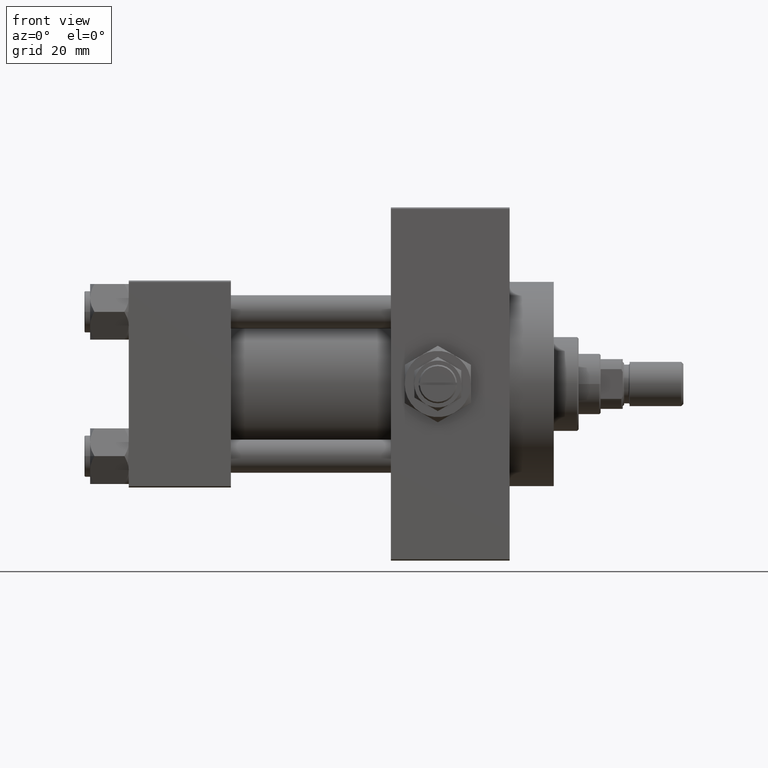
[diagram: clean part render]
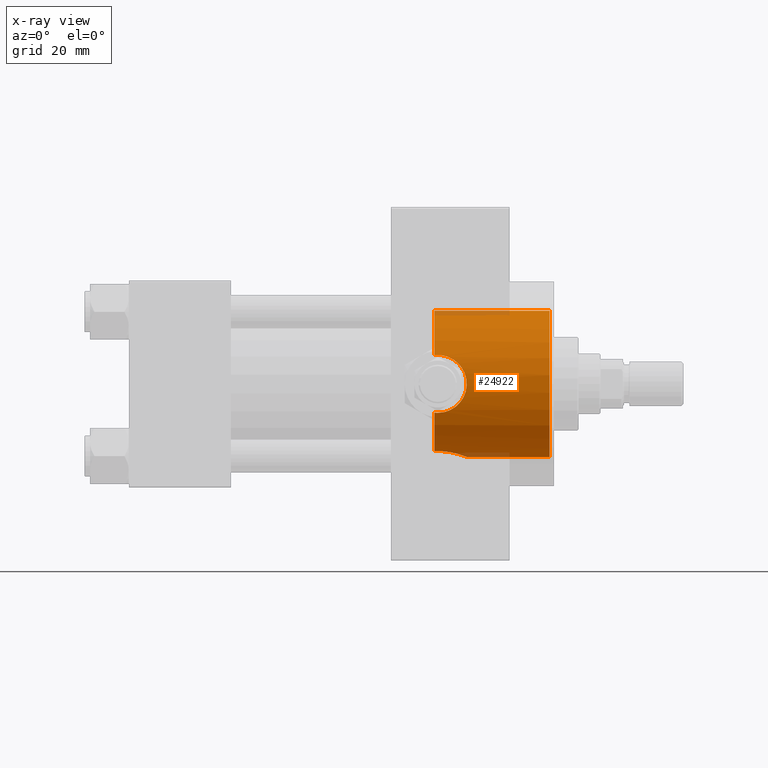
[diagram: x-ray — body ghosted, one internal face saturated and labeled with its STEP entity id]
A machine part, front view, then the same camera in x-ray: the body is ghosted and one INTERNAL B-rep face — a face not visible from any outside direction — is saturated and labeled: STEP entity #24922.
In plain terms, the highlighted cylindrical surface (partial cylindrical patch) has radius 26.5 mm, axis along (1, 0, 0).
Its self-contained STEP definition (entity closure, byte-faithful):
#432 = CARTESIAN_POINT ( 'NONE',  ( 116.6580558779861150, -24.77960996754317335, -9.394203453174529983 ) ) ;
#1138 = ORIENTED_EDGE ( 'NONE', *, *, #12443, .F. ) ;
#1708 = CARTESIAN_POINT ( 'NONE',  ( 121.8335546017134305, -3.642695553053290958, -26.25084325021122567 ) ) ;
#1870 = CYLINDRICAL_SURFACE ( 'NONE', #27456, 26.50000000000000355 ) ;
#1956 = CARTESIAN_POINT ( 'NONE',  ( 119.9981355541606973, -6.811571481472474154, -25.61680511670815363 ) ) ;
#2081 = AXIS2_PLACEMENT_3D ( 'NONE', #20196, #23481, #38541 ) ;
#2121 = DIRECTION ( 'NONE',  ( 0.000000000000000000, 0.000000000000000000, -1.000000000000000000 ) ) ;
#2364 = FACE_OUTER_BOUND ( 'NONE', #11377, .T. ) ;
#3057 = DIRECTION ( 'NONE',  ( 0.000000000000000000, 0.000000000000000000, -1.000000000000000000 ) ) ;
#3451 = CARTESIAN_POINT ( 'NONE',  ( 116.3489237122697091, -24.72318467201152714, -9.541179571695423078 ) ) ;
#3556 = CARTESIAN_POINT ( 'NONE',  ( 152.5000000000000853, 0.000000000000000000, 0.000000000000000000 ) ) ;
#3705 = CARTESIAN_POINT ( 'NONE',  ( 121.3916535229813576, -26.08830885934473542, 4.663043711798784408 ) ) ;
#4188 = CARTESIAN_POINT ( 'NONE',  ( 121.5385175848662982, -26.14168889184968947, 4.354785931857526826 ) ) ;
#5986 = EDGE_CURVE ( 'NONE', #36755, #46455, #40301, .T. ) ;
#6121 = DIRECTION ( 'NONE',  ( 1.000000000000000000, -0.000000000000000000, -0.000000000000000000 ) ) ;
#6219 = CARTESIAN_POINT ( 'NONE',  ( 112.0000000000000000, -24.33967132070604222, -10.47999999999999865 ) ) ;
#6221 = CARTESIAN_POINT ( 'NONE',  ( 118.3983008714430696, -8.308216825530728045, -25.16494175890557017 ) ) ;
#6460 = CARTESIAN_POINT ( 'NONE',  ( 115.5115735695664796, -9.881194972351249106, -24.58915736193083745 ) ) ;
#6583 = CARTESIAN_POINT ( 'NONE',  ( 152.5000000000000853, 0.000000000000000000, -26.50000000000000355 ) ) ;
#6607 = ORIENTED_EDGE ( 'NONE', *, *, #17619, .F. ) ;
#6617 = LINE ( 'NONE', #48533, #34924 ) ;
#6973 = CIRCLE ( 'NONE', #21333, 26.50000000000000355 ) ;
#6978 = CARTESIAN_POINT ( 'NONE',  ( 114.4459359432478038, -10.21777125531387753, -24.45211332338677579 ) ) ;
#7219 = CARTESIAN_POINT ( 'NONE',  ( 118.1110651716822275, -25.09360970262138224, 8.520611273842996880 ) ) ;
#7468 = CARTESIAN_POINT ( 'NONE',  ( 115.4024368383431352, -24.56844862672225815, -9.935854460437969493 ) ) ;
#7721 = CARTESIAN_POINT ( 'NONE',  ( 122.1219222710722505, -26.36027543327034905, 2.738055544399104146 ) ) ;
#7961 = CARTESIAN_POINT ( 'NONE',  ( 117.5577538920436780, -24.96463143003449403, -8.891425016462852327 ) ) ;
#8500 = VERTEX_POINT ( 'NONE', #27223 ) ;
#9310 = CIRCLE ( 'NONE', #2081, 26.50000000000000355 ) ;
#9484 = CARTESIAN_POINT ( 'NONE',  ( 120.8553297434205689, -5.616857363200493225, -25.89992295911057951 ) ) ;
#9887 = CARTESIAN_POINT ( 'NONE',  ( 110.7400000000000375, 0.000000000000000000, 0.000000000000000000 ) ) ;
#10723 = CARTESIAN_POINT ( 'NONE',  ( 111.4868983507928561, -10.49443499905853550, -24.33364968799255124 ) ) ;
#10901 = CARTESIAN_POINT ( 'NONE',  ( 112.0000000000000000, -24.33967132070604222, -10.47999999999999865 ) ) ;
#11222 = CARTESIAN_POINT ( 'NONE',  ( 116.6659000583122605, -24.77500862834706652, 9.408993987884901600 ) ) ;
#11377 = EDGE_LOOP ( 'NONE', ( #6607, #34921, #23945, #1138, #26173, #12323, #18878, #40314, #44256 ) ) ;
#11464 = CARTESIAN_POINT ( 'NONE',  ( 122.4800680225664280, -26.50002690099941205, -0.3451042088078361547 ) ) ;
#11720 = CARTESIAN_POINT ( 'NONE',  ( 114.3947302122627718, -24.45488967133337965, 10.20851256290626985 ) ) ;
#11906 = CARTESIAN_POINT ( 'NONE',  ( 112.0000000000000000, -24.33967132070604222, 10.48000000000000220 ) ) ;
#11957 = CARTESIAN_POINT ( 'NONE',  ( 112.6982936874238703, -24.33967132070603867, 10.47999999999999865 ) ) ;
#12039 = CARTESIAN_POINT ( 'NONE',  ( 110.7400000000000375, -10.40398000767013365, -24.37226292324945831 ) ) ;
#12323 = ORIENTED_EDGE ( 'NONE', *, *, #17220, .F. ) ;
#12443 = EDGE_CURVE ( 'NONE', #46427, #46455, #6617, .T. ) ;
#12511 = CARTESIAN_POINT ( 'NONE',  ( 121.2276638786152176, -4.981583166679953045, -26.02957788900646463 ) ) ;
#12991 = CARTESIAN_POINT ( 'NONE',  ( 122.4800000000001603, 1.044554909417470286E-14, -26.50000000000006750 ) ) ;
#13880 = LINE ( 'NONE', #29440, #29484 ) ;
#14477 = CARTESIAN_POINT ( 'NONE',  ( 117.4947120380321479, -8.931495953537135435, -24.95025484238639635 ) ) ;
#14939 = CARTESIAN_POINT ( 'NONE',  ( 111.5796744023297293, -24.33967132070604222, 10.48000000000000220 ) ) ;
#15236 = CARTESIAN_POINT ( 'NONE',  ( 114.7461877943153752, -24.48462605612510856, -10.13781324604279099 ) ) ;
#15416 = VERTEX_POINT ( 'NONE', #43598 ) ;
#15473 = CARTESIAN_POINT ( 'NONE',  ( 121.0679913760332198, -25.97354752128884314, 5.264851845784580320 ) ) ;
#15724 = CARTESIAN_POINT ( 'NONE',  ( 118.9276451403627135, -25.30216499957183984, -7.893159106980520257 ) ) ;
#15913 = CARTESIAN_POINT ( 'NONE',  ( 110.7400000000000375, -24.37226292324945476, 10.40398000767014786 ) ) ;
#16366 = CARTESIAN_POINT ( 'NONE',  ( 152.5000000000000853, 3.245314017740486554E-15, 26.50000000000000355 ) ) ;
#16631 = CARTESIAN_POINT ( 'NONE',  ( 110.7400000000000375, 0.000000000000000000, 0.000000000000000000 ) ) ;
#17003 = CARTESIAN_POINT ( 'NONE',  ( 121.6993435614955530, -3.985990130492286454, -26.20070574291653287 ) ) ;
#17220 = EDGE_CURVE ( 'NONE', #8500, #42226, #9310, .T. ) ;
#17253 = CARTESIAN_POINT ( 'NONE',  ( 119.5076201536012235, -7.348534936426531772, -25.46581292754184389 ) ) ;
#17498 = CARTESIAN_POINT ( 'NONE',  ( 112.2451057705678039, -10.50334255171939368, -24.32972513250579993 ) ) ;
#17619 = EDGE_CURVE ( 'NONE', #15416, #49035, #6973, .T. ) ;
#18746 = CARTESIAN_POINT ( 'NONE',  ( 122.3421836049517140, -26.44572692659851754, -1.728475508984260278 ) ) ;
#18878 = ORIENTED_EDGE ( 'NONE', *, *, #43985, .T. ) ;
#18998 = CARTESIAN_POINT ( 'NONE',  ( 115.3904700717597649, -24.57248644795726022, 9.922439993611771314 ) ) ;
#19101 = CARTESIAN_POINT ( 'NONE',  ( 112.0000000000000000, -24.33967132070604222, -10.47999999999999865 ) ) ;
#19480 = CARTESIAN_POINT ( 'NONE',  ( 115.7173844672076370, -24.61993612039164248, 9.804529592362731805 ) ) ;
#19735 = EDGE_CURVE ( 'NONE', #44105, #49035, #47396, .T. ) ;
#20036 = CARTESIAN_POINT ( 'NONE',  ( 122.1654842721633969, -2.575241489874368295, -26.37710048711162614 ) ) ;
#20196 = CARTESIAN_POINT ( 'NONE',  ( 110.7400000000000375, 0.000000000000000000, 0.000000000000000000 ) ) ;
#21333 = AXIS2_PLACEMENT_3D ( 'NONE', #16631, #35700, #47988 ) ;
#21505 = CARTESIAN_POINT ( 'NONE',  ( 112.6904960883777846, -24.33967132070604222, -10.48000000000000043 ) ) ;
#21506 = CARTESIAN_POINT ( 'NONE',  ( 113.7216423275559407, -10.36418010715235383, -24.38933169417625990 ) ) ;
#22154 = EDGE_CURVE ( 'NONE', #46427, #42226, #39630, .T. ) ;
#22764 = CARTESIAN_POINT ( 'NONE',  ( 122.2075249541714896, -26.39335609204158573, 2.399236127628239235 ) ) ;
#22867 = CARTESIAN_POINT ( 'NONE',  ( 111.1611364518797984, -24.35049096341792918, -10.45498279016081611 ) ) ;
#23013 = CARTESIAN_POINT ( 'NONE',  ( 112.0000000000000000, -24.33967132070604222, 10.48000000000000220 ) ) ;
#23255 = CARTESIAN_POINT ( 'NONE',  ( 121.9389570606566053, -26.28956209411557765, -3.395175965175880606 ) ) ;
#23481 = DIRECTION ( 'NONE',  ( 1.000000000000000000, 0.000000000000000000, 0.000000000000000000 ) ) ;
#23945 = ORIENTED_EDGE ( 'NONE', *, *, #5986, .T. ) ;
#24705 = DIRECTION ( 'NONE',  ( 1.000000000000000000, -0.000000000000000000, -0.000000000000000000 ) ) ;
#24787 = CARTESIAN_POINT ( 'NONE',  ( 120.6508763872861323, -5.926808359427498729, -25.83050513016100069 ) ) ;
#24922 = ADVANCED_FACE ( 'NONE', ( #2364 ), #1870, .F. ) ;
#25535 = CARTESIAN_POINT ( 'NONE',  ( 115.8600678267363406, -9.750145953289912626, -24.64162310621549423 ) ) ;
#25633 = DIRECTION ( 'NONE',  ( 1.000000000000000000, 0.000000000000000000, 0.000000000000000000 ) ) ;
#26173 = ORIENTED_EDGE ( 'NONE', *, *, #22154, .T. ) ;
#26296 = CARTESIAN_POINT ( 'NONE',  ( 119.1663633815065140, -25.37171319999174912, 7.654298772871992895 ) ) ;
#26783 = CARTESIAN_POINT ( 'NONE',  ( 122.4798633477534509, -26.49994595790488106, 0.6963870350870486892 ) ) ;
#27223 = CARTESIAN_POINT ( 'NONE',  ( 110.7400000000000375, -24.37226292324945831, -10.40398000767014430 ) ) ;
#27266 = CARTESIAN_POINT ( 'NONE',  ( 119.6501220615578234, -25.51256335955728716, -7.170912732211446539 ) ) ;
#27456 = AXIS2_PLACEMENT_3D ( 'NONE', #9887, #24705, #2121 ) ;
#29440 = CARTESIAN_POINT ( 'NONE',  ( 110.7400000000000375, 3.245314017740486554E-15, 26.50000000000000355 ) ) ;
#29484 = VECTOR ( 'NONE', #6121, 1000.000000000000000 ) ;
#29694 = DIRECTION ( 'NONE',  ( 1.000000000000000000, -0.000000000000000000, -0.000000000000000000 ) ) ;
#30542 = CARTESIAN_POINT ( 'NONE',  ( 120.5155153844950462, -25.78569419426082021, -6.118106053452859960 ) ) ;
#30731 = CARTESIAN_POINT ( 'NONE',  ( 111.1580741051582635, -24.35064928096444348, 10.45461191700782422 ) ) ;
#30789 = CARTESIAN_POINT ( 'NONE',  ( 119.8850942087585736, -25.58093385762820660, 6.936447548980011035 ) ) ;
#31043 = CARTESIAN_POINT ( 'NONE',  ( 120.3132647636415271, -25.71940794313460898, -6.390292897823913520 ) ) ;
#31276 = CARTESIAN_POINT ( 'NONE',  ( 122.3935590552673744, -26.46591511510092687, -1.387412420731371165 ) ) ;
#31772 = B_SPLINE_CURVE_WITH_KNOTS ( 'NONE', 3,
 ( #6219, #21505, #48624, #15236, #7468, #3451, #432, #42349, #7961, #34308, #15724, #27266, #46590, #31043, #30542, #38562, #34791, #23255, #45852, #18746, #31276, #37813, #11464, #26783, #42103, #22764, #7721, #38075, #49622, #4188, #3705, #15473, #34061, #38819, #30789, #26296, #34540, #41606, #7219, #49380, #11222, #19480, #18998, #46355, #11720, #46106, #11957, #23013 ),
 .UNSPECIFIED., .F., .F.,
 ( 4, 2, 2, 2, 2, 2, 2, 2, 2, 2, 2, 2, 2, 2, 2, 2, 2, 2, 2, 2, 2, 2, 2, 4 ),
 ( 0.001255586767787659347, 0.003325356817179700875, 0.005395126866571742404, 0.006430011891267743869, 0.007464896915963744467, 0.009534666965355782092, 0.01056955199005181305, 0.01160443701474784574, 0.01367420706413988857, 0.01574397711353192966, 0.01677886213822795194, 0.01781374716292397076, 0.01988351721231601532, 0.02091840223701203413, 0.02195328726170805295, 0.02298817228640406482, 0.02402305731110008363, 0.02609282736049212126, 0.02712771238518812619, 0.02816259740988413460, 0.03023236745927610630, 0.03126725248397210777, 0.03230213750866811617, 0.03437190755806011910 ),
 .UNSPECIFIED. ) ;
#32318 = CARTESIAN_POINT ( 'NONE',  ( 122.4011065554137900, -1.483758503940586060, -26.46850309434598003 ) ) ;
#32569 = CARTESIAN_POINT ( 'NONE',  ( 118.6874981071936759, -8.077221093107549876, -25.24030799844107520 ) ) ;
#33806 = CARTESIAN_POINT ( 'NONE',  ( 116.5335921408433535, -9.455792512420327256, -24.75606841526506940 ) ) ;
#34061 = CARTESIAN_POINT ( 'NONE',  ( 120.8904987776702171, -25.91192981801191664, 5.559420023815757617 ) ) ;
#34308 = CARTESIAN_POINT ( 'NONE',  ( 118.4049404352972061, -25.16229795609818964, -8.322848467437539810 ) ) ;
#34540 = CARTESIAN_POINT ( 'NONE',  ( 118.9147507852791676, -25.30155050139244111, 7.882476147205595751 ) ) ;
#34791 = CARTESIAN_POINT ( 'NONE',  ( 121.4057128516256370, -26.09263577897064224, -4.673612418766447618 ) ) ;
#34921 = ORIENTED_EDGE ( 'NONE', *, *, #36560, .T. ) ;
#34924 = VECTOR ( 'NONE', #29694, 1000.000000000000000 ) ;
#35700 = DIRECTION ( 'NONE',  ( 1.000000000000000000, 0.000000000000000000, 0.000000000000000000 ) ) ;
#36078 = CARTESIAN_POINT ( 'NONE',  ( 122.4800000000000324, -0.7466733969459961040, -26.50000000000001421 ) ) ;
#36320 = CARTESIAN_POINT ( 'NONE',  ( 122.0665133812162537, -2.938253791439165319, -26.33899517628733733 ) ) ;
#36449 = CARTESIAN_POINT ( 'NONE',  ( 122.4800000000001603, 1.044554909417470286E-14, -26.50000000000006750 ) ) ;
#36560 = EDGE_CURVE ( 'NONE', #15416, #36755, #13880, .T. ) ;
#36755 = VERTEX_POINT ( 'NONE', #16366 ) ;
#37574 = CARTESIAN_POINT ( 'NONE',  ( 110.7400000000000375, -10.40398000767013365, -24.37226292324945831 ) ) ;
#37813 = CARTESIAN_POINT ( 'NONE',  ( 122.4626037639855838, -26.49310609510639836, -0.6963515910539334053 ) ) ;
#38075 = CARTESIAN_POINT ( 'NONE',  ( 121.9191483855533704, -26.28308039691835418, 3.400110870430098853 ) ) ;
#38182 = CARTESIAN_POINT ( 'NONE',  ( 111.5811236364006049, -24.33967132070604222, -10.47999999999999865 ) ) ;
#38541 = DIRECTION ( 'NONE',  ( 0.000000000000000000, 0.000000000000000000, -1.000000000000000000 ) ) ;
#38562 = CARTESIAN_POINT ( 'NONE',  ( 121.0816778311290136, -25.97633853132261450, -5.273786452924785983 ) ) ;
#38702 = VERTEX_POINT ( 'NONE', #10901 ) ;
#38819 = CARTESIAN_POINT ( 'NONE',  ( 120.3165002292777785, -25.71874665637611201, 6.413821170274212946 ) ) ;
#39630 = B_SPLINE_CURVE_WITH_KNOTS ( 'NONE', 3,
 ( #12991, #36078, #32318, #20036, #36320, #1708, #17003, #47637, #12511, #9484, #24787, #1956, #17253, #32569, #6221, #44855, #14477, #41355, #33806, #25535, #6460, #6978, #21506, #17498, #10723, #37574 ),
 .UNSPECIFIED., .F., .F.,
 ( 4, 2, 2, 2, 2, 2, 2, 2, 2, 2, 2, 2, 4 ),
 ( 0.01781170071191075926, 0.02003745927526345838, 0.02115033855693980447, 0.02226321783861615403, 0.02337609712029250011, 0.02448897640196884967, 0.02671473496532152103, 0.02782761424699785324, 0.02894049352867418545, 0.03005337281035051766, 0.03116625209202684987, 0.03339201065537952123, 0.03561776921873219259 ),
 .UNSPECIFIED. ) ;
#40301 = CIRCLE ( 'NONE', #44304, 26.50000000000000355 ) ;
#40314 = ORIENTED_EDGE ( 'NONE', *, *, #46031, .T. ) ;
#41270 = CARTESIAN_POINT ( 'NONE',  ( 110.7400000000000375, -24.37226292324945476, 10.40398000767014786 ) ) ;
#41355 = CARTESIAN_POINT ( 'NONE',  ( 116.8603660912149991, -9.291949300782539112, -24.81826977973611292 ) ) ;
#41482 = B_SPLINE_CURVE_WITH_KNOTS ( 'NONE', 3,
 ( #41953, #22867, #38182, #19101 ),
 .UNSPECIFIED., .F., .F.,
 ( 4, 4 ),
 ( 0.000000000000000000, 0.001255586767787659347 ),
 .UNSPECIFIED. ) ;
#41606 = CARTESIAN_POINT ( 'NONE',  ( 118.3864792908362773, -25.16230905708522414, 8.316254619809553716 ) ) ;
#41953 = CARTESIAN_POINT ( 'NONE',  ( 110.7400000000000375, -24.37226292324945831, -10.40398000767014430 ) ) ;
#42103 = CARTESIAN_POINT ( 'NONE',  ( 122.4114040688938587, -26.47265107862981992, 1.382412405478188999 ) ) ;
#42226 = VERTEX_POINT ( 'NONE', #12039 ) ;
#42349 = CARTESIAN_POINT ( 'NONE',  ( 117.2635990777562256, -24.90054338428140568, -9.068796382691635571 ) ) ;
#43598 = CARTESIAN_POINT ( 'NONE',  ( 110.7400000000000375, 3.245314017740486554E-15, 26.50000000000000355 ) ) ;
#43985 = EDGE_CURVE ( 'NONE', #8500, #38702, #41482, .T. ) ;
#44105 = VERTEX_POINT ( 'NONE', #44400 ) ;
#44256 = ORIENTED_EDGE ( 'NONE', *, *, #19735, .T. ) ;
#44304 = AXIS2_PLACEMENT_3D ( 'NONE', #3556, #25633, #3057 ) ;
#44400 = CARTESIAN_POINT ( 'NONE',  ( 112.0000000000000000, -24.33967132070604222, 10.48000000000000220 ) ) ;
#44855 = CARTESIAN_POINT ( 'NONE',  ( 117.8022832347253370, -8.734885810676978224, -25.02004257437574708 ) ) ;
#45852 = CARTESIAN_POINT ( 'NONE',  ( 122.1391112229688076, -26.36675217432884466, -2.738755341944245192 ) ) ;
#46031 = EDGE_CURVE ( 'NONE', #38702, #44105, #31772, .T. ) ;
#46106 = CARTESIAN_POINT ( 'NONE',  ( 113.3839948142214524, -24.36973996242157625, 10.41091756284553504 ) ) ;
#46355 = CARTESIAN_POINT ( 'NONE',  ( 114.7286532048194516, -24.48994387988090082, 10.12445329003761252 ) ) ;
#46427 = VERTEX_POINT ( 'NONE', #36449 ) ;
#46455 = VERTEX_POINT ( 'NONE', #6583 ) ;
#46590 = CARTESIAN_POINT ( 'NONE',  ( 119.8811664359166400, -25.58300917221409421, -6.916171625962136638 ) ) ;
#47396 = B_SPLINE_CURVE_WITH_KNOTS ( 'NONE', 3,
 ( #11906, #14939, #30731, #15913 ),
 .UNSPECIFIED., .F., .F.,
 ( 4, 4 ),
 ( 0.03437190755806011910, 0.03561776921873218565 ),
 .UNSPECIFIED. ) ;
#47637 = CARTESIAN_POINT ( 'NONE',  ( 121.3963988635402984, -4.655434592126339588, -26.09007526830299639 ) ) ;
#47988 = DIRECTION ( 'NONE',  ( 0.000000000000000000, 0.000000000000000000, -1.000000000000000000 ) ) ;
#48533 = CARTESIAN_POINT ( 'NONE',  ( 110.7400000000000375, 0.000000000000000000, -26.50000000000000355 ) ) ;
#48624 = CARTESIAN_POINT ( 'NONE',  ( 113.3786097457406044, -24.36915941385104745, -10.41231194222669387 ) ) ;
#49035 = VERTEX_POINT ( 'NONE', #41270 ) ;
#49380 = CARTESIAN_POINT ( 'NONE',  ( 117.2636119660474066, -24.89625137302610369, 9.087734872939172703 ) ) ;
#49622 = CARTESIAN_POINT ( 'NONE',  ( 121.8022638174866046, -26.23907308479208922, 3.723318718764354163 ) ) ;